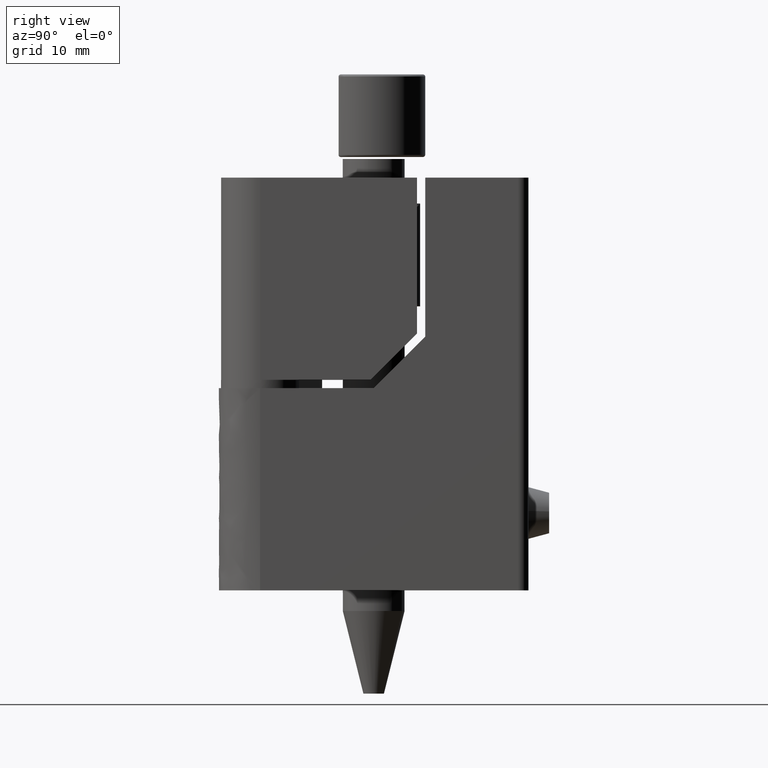
[diagram: clean part render]
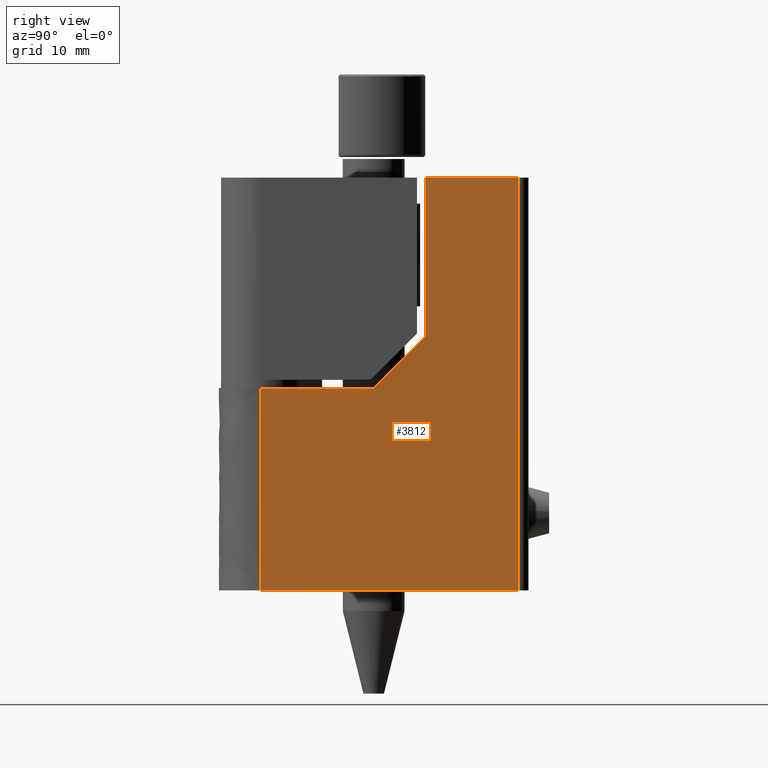
[diagram: same view with one face highlighted and labeled with its STEP entity id]
A machine part, right view. The second image highlights one B-rep face of the part: STEP entity #3812.
In plain terms, the highlighted face is a freeform B-spline surface patch.
Its self-contained STEP definition (entity closure, byte-faithful):
#3486=CARTESIAN_POINT('',(3.999965106767605,10.999999287538220,19.600000930950149));
#3487=VERTEX_POINT('',#3486);
#3493=CARTESIAN_POINT('',(3.999965106767605,16.000001234933752,24.600001168437299));
#3494=VERTEX_POINT('',#3493);
#3495=CARTESIAN_POINT('',(3.999965106767605,10.999999287538220,19.600000930950149));
#3496=CARTESIAN_POINT('',(3.999965106767605,16.000001234933752,24.600001168437299));
#3497=QUASI_UNIFORM_CURVE('',1,(#3495,#3496),.UNSPECIFIED.,.F.,.U.);
#3498=EDGE_CURVE('',#3487,#3494,#3497,.T.);
#3573=CARTESIAN_POINT('',(3.999965106767605,16.000001234933752,40.000001899898152));
#3574=VERTEX_POINT('',#3573);
#3580=CARTESIAN_POINT('',(3.999965106767605,25.000001234933752,40.000001899898152));
#3581=VERTEX_POINT('',#3580);
#3582=CARTESIAN_POINT('',(3.999965106767605,16.000001234933752,40.000001899898152));
#3583=CARTESIAN_POINT('',(3.999965106767605,25.000001234933752,40.000001899898152));
#3584=QUASI_UNIFORM_CURVE('',1,(#3582,#3583),.UNSPECIFIED.,.F.,.U.);
#3585=EDGE_CURVE('',#3574,#3581,#3584,.T.);
#3614=CARTESIAN_POINT('',(3.999965106767605,16.000001234933752,40.000001899898152));
#3615=CARTESIAN_POINT('',(3.999965106767605,16.000001234933752,24.600001168437299));
#3616=QUASI_UNIFORM_CURVE('',1,(#3614,#3615),.UNSPECIFIED.,.F.,.U.);
#3617=EDGE_CURVE('',#3574,#3494,#3616,.T.);
#3637=CARTESIAN_POINT('',(3.999965106767605,25.000001234933752,0.0));
#3638=VERTEX_POINT('',#3637);
#3652=CARTESIAN_POINT('',(3.999965106767600,2.131628E-014,0.0));
#3653=VERTEX_POINT('',#3652);
#3654=CARTESIAN_POINT('',(3.999965106767600,2.131628E-014,0.0));
#3655=CARTESIAN_POINT('',(3.999965106767605,25.000001234933752,0.0));
#3656=QUASI_UNIFORM_CURVE('',1,(#3654,#3655),.UNSPECIFIED.,.F.,.U.);
#3657=EDGE_CURVE('',#3653,#3638,#3656,.T.);
#3780=CARTESIAN_POINT('',(3.999965106767605,25.000001234933752,40.000001899898152));
#3781=CARTESIAN_POINT('',(3.999965106767605,25.000001234933752,0.0));
#3782=QUASI_UNIFORM_CURVE('',1,(#3780,#3781),.UNSPECIFIED.,.F.,.U.);
#3783=EDGE_CURVE('',#3581,#3638,#3782,.T.);
#3788=CARTESIAN_POINT('',(3.999965106767605,-1.248750013230064,-1.997999874464046));
#3789=CARTESIAN_POINT('',(3.999965106767605,-1.248750013230064,41.997999986222773));
#3790=CARTESIAN_POINT('',(3.999965106767605,26.248751918716131,-1.997999874464046));
#3791=CARTESIAN_POINT('',(3.999965106767605,26.248751918716131,41.997999986222773));
#3792=B_SPLINE_SURFACE_WITH_KNOTS('',1,1,((#3788,#3790),(#3789,#3791)),.UNSPECIFIED.,.F.,.F.,.U.,(2,2),(2,2),(0.0,43.995999860686823),(0.0,27.497501931946200),.UNSPECIFIED.);
#3793=ORIENTED_EDGE('',*,*,#3657,.T.);
#3794=ORIENTED_EDGE('',*,*,#3783,.F.);
#3795=ORIENTED_EDGE('',*,*,#3585,.F.);
#3796=ORIENTED_EDGE('',*,*,#3617,.T.);
#3797=ORIENTED_EDGE('',*,*,#3498,.F.);
#3798=CARTESIAN_POINT('',(3.999965106767600,2.131628E-014,19.600000930950149));
#3799=VERTEX_POINT('',#3798);
#3800=CARTESIAN_POINT('',(3.999965106767600,2.131628E-014,19.600000930950149));
#3801=CARTESIAN_POINT('',(3.999965106767605,10.999999287538220,19.600000930950149));
#3802=QUASI_UNIFORM_CURVE('',1,(#3800,#3801),.UNSPECIFIED.,.F.,.U.);
#3803=EDGE_CURVE('',#3799,#3487,#3802,.T.);
#3804=ORIENTED_EDGE('',*,*,#3803,.F.);
#3805=CARTESIAN_POINT('',(3.999965106767600,2.131628E-014,19.600000930950149));
#3806=CARTESIAN_POINT('',(3.999965106767600,2.131628E-014,0.0));
#3807=QUASI_UNIFORM_CURVE('',1,(#3805,#3806),.UNSPECIFIED.,.F.,.U.);
#3808=EDGE_CURVE('',#3799,#3653,#3807,.T.);
#3809=ORIENTED_EDGE('',*,*,#3808,.T.);
#3810=EDGE_LOOP('',(#3793,#3794,#3795,#3796,#3797,#3804,#3809));
#3811=FACE_OUTER_BOUND('',#3810,.T.);
#3812=ADVANCED_FACE('',(#3811),#3792,.F.);